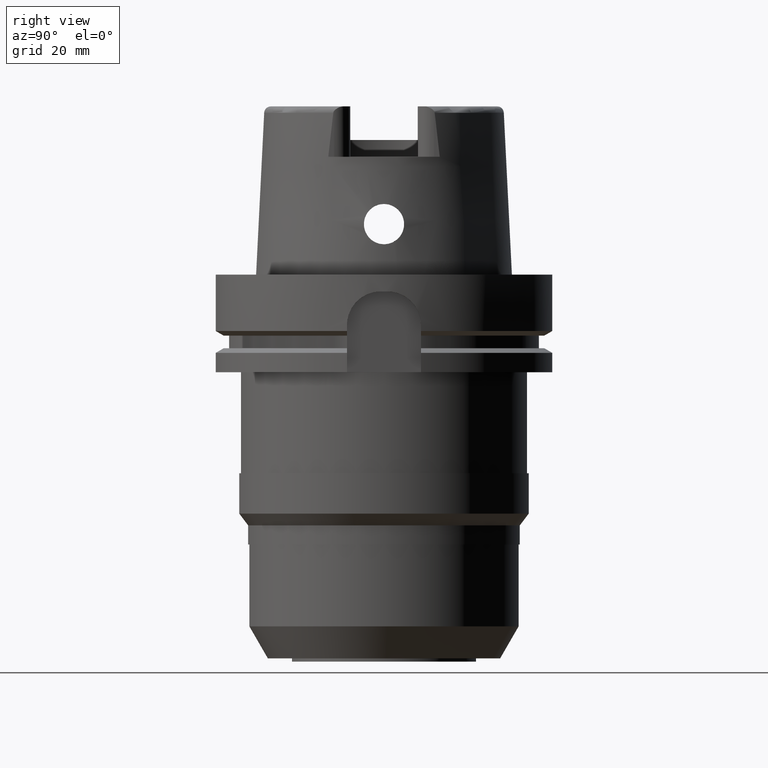
[diagram: clean part render]
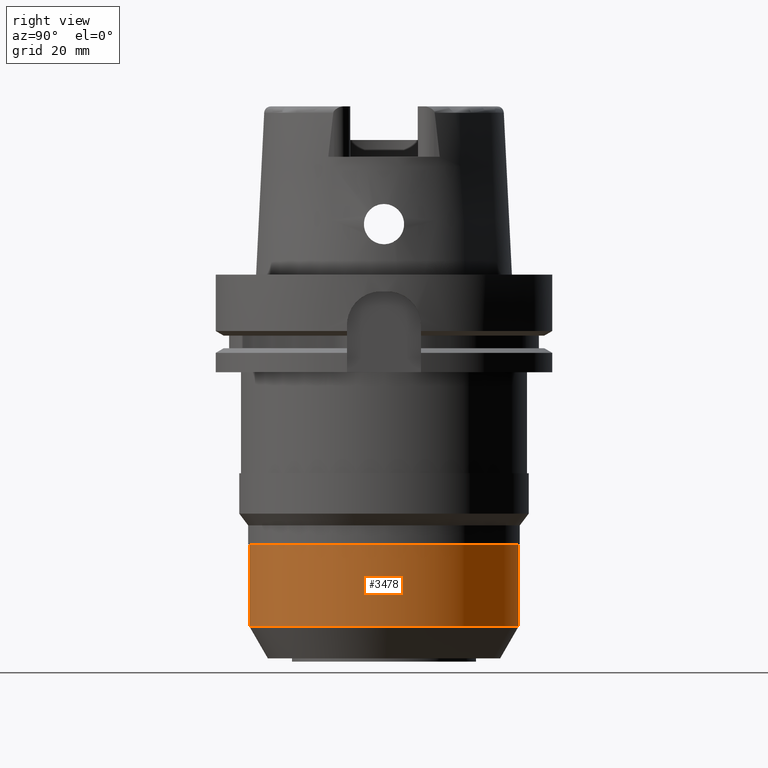
[diagram: same view with one face highlighted and labeled with its STEP entity id]
A machine part, right view. The second image highlights one B-rep face of the part: STEP entity #3478.
In plain terms, the highlighted cylindrical surface (partial cylindrical patch) has radius 40 mm, axis along (0, 0, 1).
Its self-contained STEP definition (entity closure, byte-faithful):
#1102=CARTESIAN_POINT('',(0.E0,0.E0,-1.045E2));
#1103=DIRECTION('',(0.E0,0.E0,1.E0));
#1104=DIRECTION('',(0.E0,-1.E0,0.E0));
#1105=AXIS2_PLACEMENT_3D('',#1102,#1103,#1104);
#1125=DIRECTION('',(0.E0,-1.052655904830E-14,-1.E0));
#1126=VECTOR('',#1125,2.43E1);
#1127=CARTESIAN_POINT('',(0.E0,-4.E1,-8.02E1));
#1128=LINE('',#1127,#1126);
#1132=DIRECTION('',(0.E0,1.052655904830E-14,-1.E0));
#1133=VECTOR('',#1132,2.43E1);
#1134=CARTESIAN_POINT('',(0.E0,4.E1,-8.02E1));
#1135=LINE('',#1134,#1133);
#1163=CARTESIAN_POINT('',(0.E0,0.E0,-8.02E1));
#1164=DIRECTION('',(0.E0,0.E0,-1.E0));
#1165=DIRECTION('',(0.E0,1.E0,0.E0));
#1166=AXIS2_PLACEMENT_3D('',#1163,#1164,#1165);
#2476=CARTESIAN_POINT('',(0.E0,4.E1,-1.045E2));
#2477=VERTEX_POINT('',#2476);
#2478=CARTESIAN_POINT('',(0.E0,-4.E1,-1.045E2));
#2479=VERTEX_POINT('',#2478);
#2480=CARTESIAN_POINT('',(0.E0,4.E1,-8.02E1));
#2481=VERTEX_POINT('',#2480);
#2482=CARTESIAN_POINT('',(0.E0,-4.E1,-8.02E1));
#2483=VERTEX_POINT('',#2482);
#3466=CARTESIAN_POINT('',(0.E0,0.E0,-1.2325E2));
#3467=DIRECTION('',(0.E0,0.E0,1.E0));
#3468=DIRECTION('',(0.E0,1.E0,0.E0));
#3469=AXIS2_PLACEMENT_3D('',#3466,#3467,#3468);
#3470=CYLINDRICAL_SURFACE('',#3469,4.E1);
#3471=ORIENTED_EDGE('',*,*,#3456,.T.);
#3472=ORIENTED_EDGE('',*,*,#3433,.F.);
#3473=ORIENTED_EDGE('',*,*,#3460,.F.);
#3475=ORIENTED_EDGE('',*,*,#3474,.F.);
#3476=EDGE_LOOP('',(#3471,#3472,#3473,#3475));
#3477=FACE_OUTER_BOUND('',#3476,.F.);
#1106=CIRCLE('',#1105,4.E1);
#1167=CIRCLE('',#1166,4.E1);
#3433=EDGE_CURVE('',#2479,#2477,#1106,.T.);
#3456=EDGE_CURVE('',#2481,#2477,#1135,.T.);
#3460=EDGE_CURVE('',#2483,#2479,#1128,.T.);
#3474=EDGE_CURVE('',#2481,#2483,#1167,.T.);
#3478=ADVANCED_FACE('',(#3477),#3470,.T.);